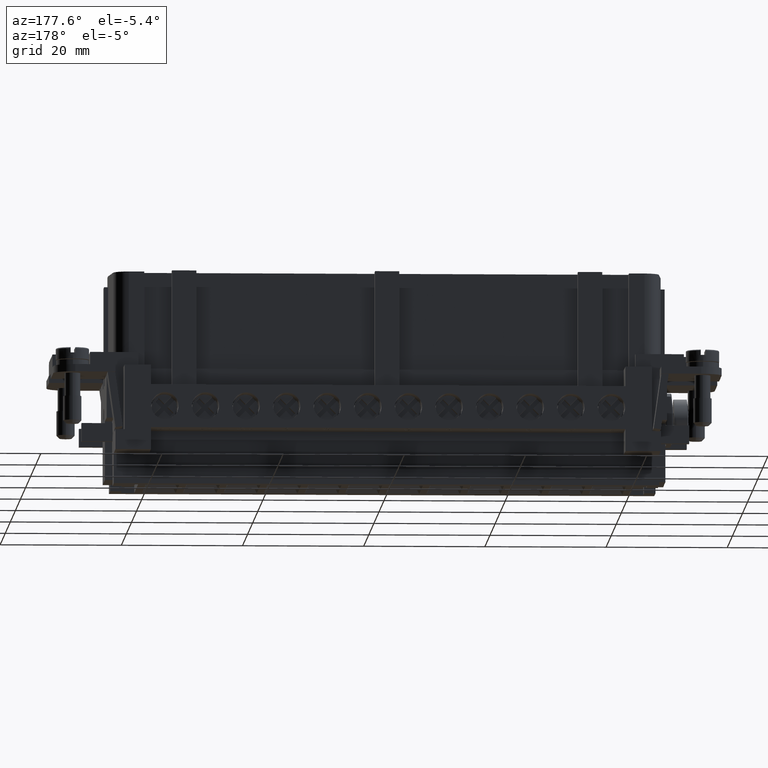
[diagram: clean part render]
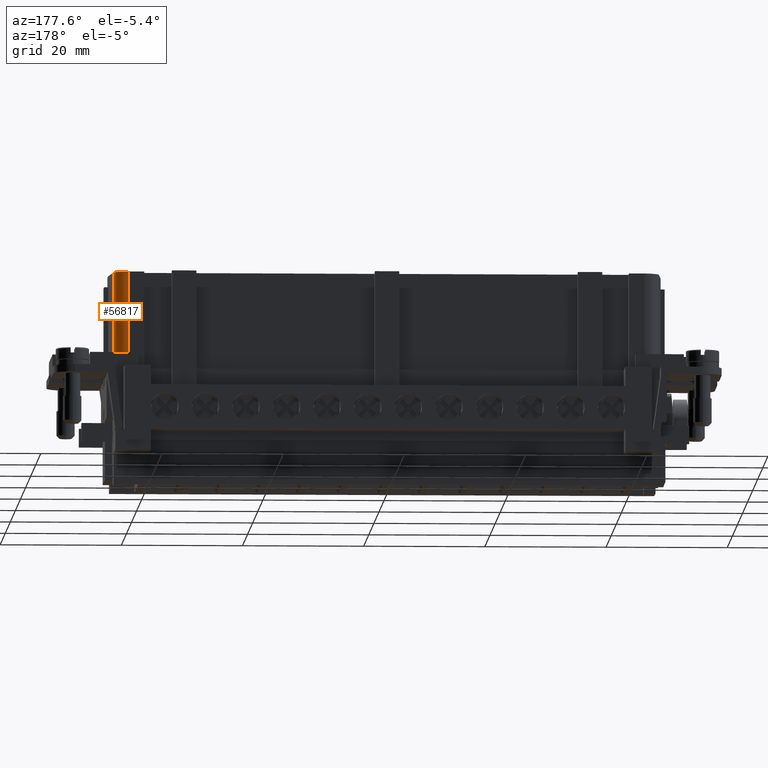
[diagram: same view with one face highlighted and labeled with its STEP entity id]
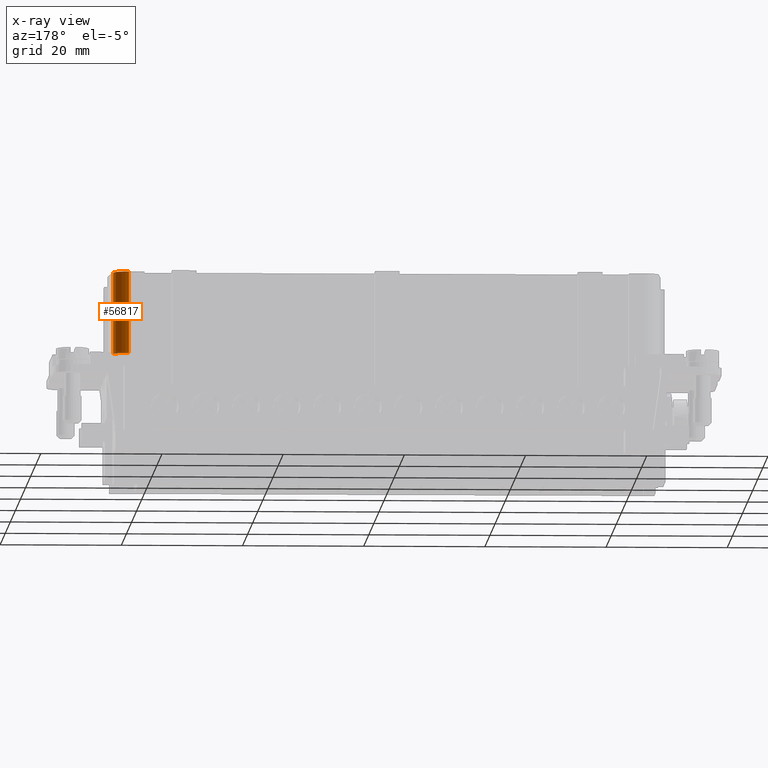
[diagram: x-ray of the same camera — body ghosted, the highlighted face saturated]
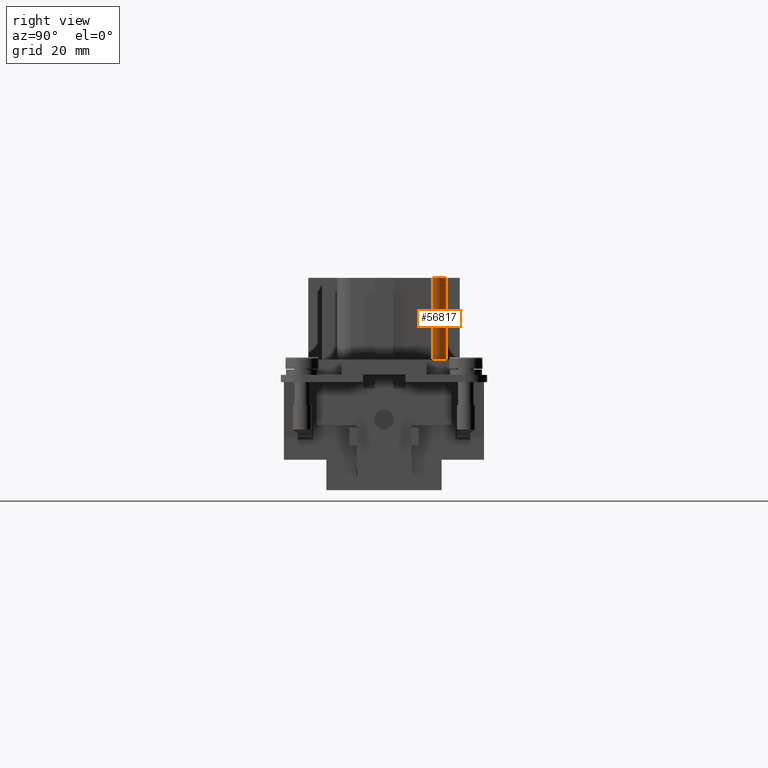
[diagram: same view with one face highlighted and labeled with its STEP entity id]
A machine part, auxiliary view. The second image highlights one B-rep face of the part: STEP entity #56817.
The next image is the same camera in x-ray: the body ghosted, the highlighted face saturated — about 0% of this face is hidden behind the body in this view.
A second angle (right view) of the same face is appended — the face is thin or edge-on in the first view.
In plain terms, the highlighted cylindrical surface (edge-blend (fillet) strip) has radius 2.5 mm, axis along (0, 0, 1).
Its self-contained STEP definition (entity closure, byte-faithful):
#48651=CARTESIAN_POINT('',(42.543646259104605,10.250000000000002,21.500000000000000));
#48652=VERTEX_POINT('',#48651);
#48661=CARTESIAN_POINT('',(45.034133004333974,7.967889356869147,21.500000000000000));
#48662=VERTEX_POINT('',#48661);
#48663=CARTESIAN_POINT('',(42.543646259104605,7.750000000000002,21.500000000000000));
#48664=DIRECTION('',(0.0,0.0,1.0));
#48665=DIRECTION('',(-0.996194698091746,-0.087155742747658,0.0));
#48666=AXIS2_PLACEMENT_3D('',#48663,#48664,#48665);
#48667=CIRCLE('',#48666,2.500000000000005);
#48668=EDGE_CURVE('',#48662,#48652,#48667,.T.);
#56775=CARTESIAN_POINT('',(42.543646259104605,10.250000000000002,35.0));
#56776=VERTEX_POINT('',#56775);
#56783=CARTESIAN_POINT('',(42.543646259104605,10.250000000000002,21.500000000000000));
#56784=DIRECTION('',(0.0,0.0,1.0));
#56785=VECTOR('',#56784,13.500000000000000);
#56786=LINE('',#56783,#56785);
#56787=EDGE_CURVE('',#48652,#56776,#56786,.T.);
#56793=CARTESIAN_POINT('',(42.543646259104605,7.750000000000002,19.0));
#56794=DIRECTION('',(0.0,0.0,1.0));
#56795=DIRECTION('',(-0.996194698091746,-0.087155742747658,0.0));
#56796=AXIS2_PLACEMENT_3D('',#56793,#56794,#56795);
#56797=CYLINDRICAL_SURFACE('',#56796,2.500000000000005);
#56798=ORIENTED_EDGE('',*,*,#48668,.T.);
#56799=ORIENTED_EDGE('',*,*,#56787,.T.);
#56800=CARTESIAN_POINT('',(45.034133004333974,7.967889356869147,35.0));
#56801=VERTEX_POINT('',#56800);
#56802=CARTESIAN_POINT('',(42.543646259104605,7.750000000000002,35.0));
#56803=DIRECTION('',(0.0,0.0,-1.0));
#56804=DIRECTION('',(-0.996194698091746,-0.087155742747658,0.0));
#56805=AXIS2_PLACEMENT_3D('',#56802,#56803,#56804);
#56806=CIRCLE('',#56805,2.500000000000005);
#56807=EDGE_CURVE('',#56776,#56801,#56806,.T.);
#56808=ORIENTED_EDGE('',*,*,#56807,.T.);
#56809=CARTESIAN_POINT('',(45.034133004333974,7.967889356869147,21.500000000000000));
#56810=DIRECTION('',(0.0,0.0,1.0));
#56811=VECTOR('',#56810,13.500000000000000);
#56812=LINE('',#56809,#56811);
#56813=EDGE_CURVE('',#48662,#56801,#56812,.T.);
#56814=ORIENTED_EDGE('',*,*,#56813,.F.);
#56815=EDGE_LOOP('',(#56798,#56799,#56808,#56814));
#56816=FACE_OUTER_BOUND('',#56815,.T.);
#56817=ADVANCED_FACE('',(#56816),#56797,.T.);